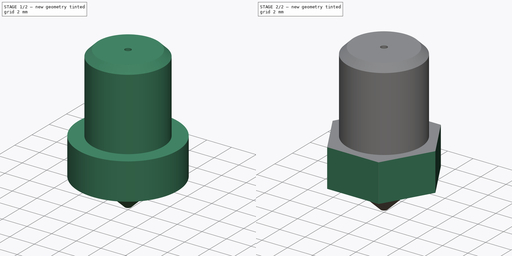
[diagram: build sequence overview — one tinted view per stage of 2, left to right]
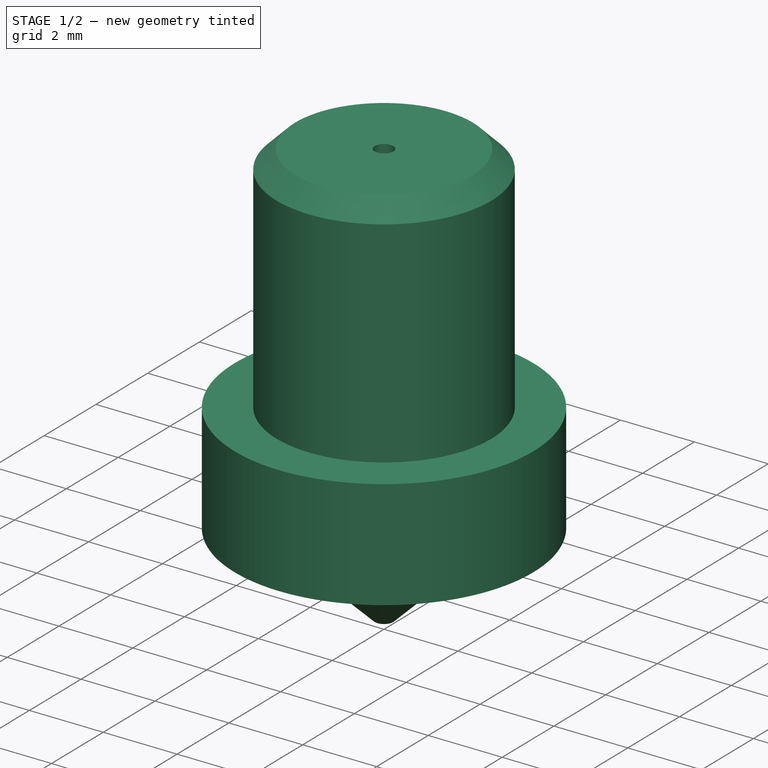
[diagram: stage 1 of 2 — iso view after this stage's code; geometry added in this stage tinted green]
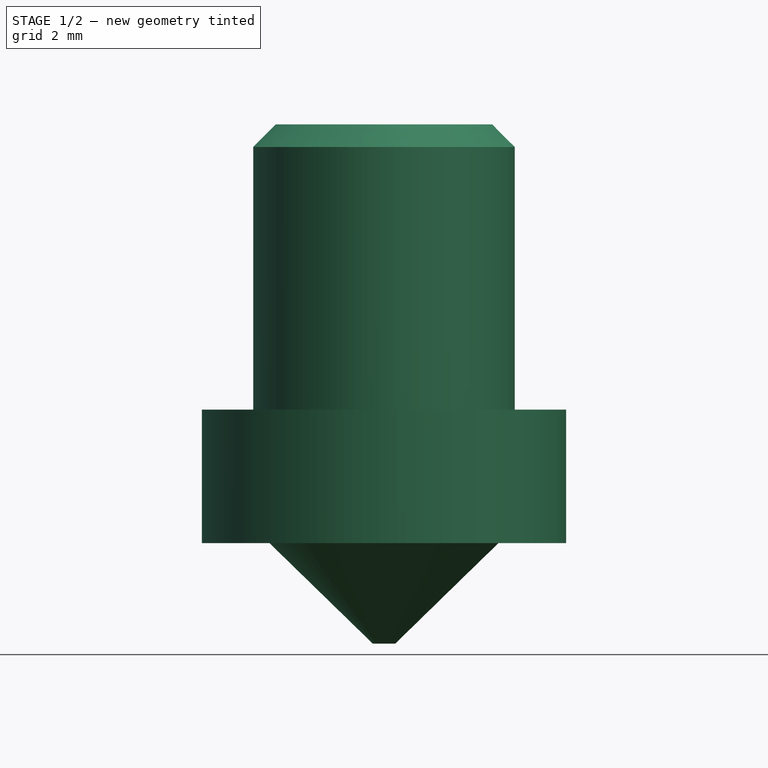
[diagram: stage 1 of 2 — front view after this stage's code; geometry added in this stage tinted green]
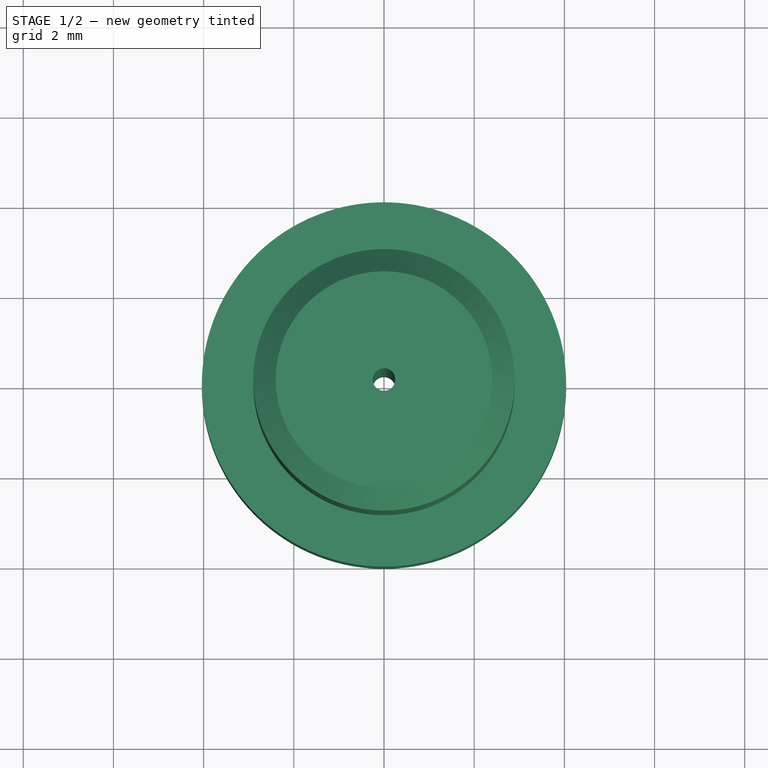
[diagram: stage 1 of 2 — top view after this stage's code; geometry added in this stage tinted green]
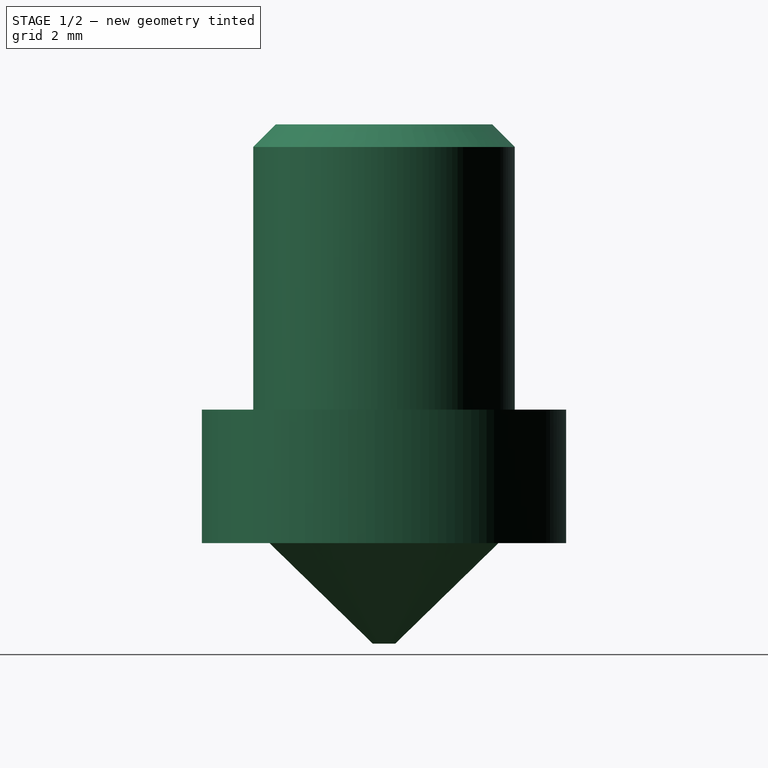
[diagram: stage 1 of 2 — right view after this stage's code; geometry added in this stage tinted green]
FCSTD DOCUMENT  (FreeCAD 0.15R4477 (Git))
Label: hotend-nozzle
License: CC-BY 3.0
LicenseURL: http://creativecommons.org/licenses/by/3.0/
objects: Sketcher::SketchObject×2, PartDesign::Revolution×1, PartDesign::Pocket×1, Part::Feature×1
note: 7 computed .brp shape members not serialized (recipe doc carries the construction recipe); baked Part::Feature solids carry a one-line shape summary decoded from their .brp

FEATURE [Sketcher::SketchObject] Sketch  label="main-body-sketch"
  Placement = pos=(0,0,0) rot=(1,0,0;1.5708rad)
  sketch-geometry (9):
    g0: LineSegment StartX=-0.25 StartY=13 StartZ=0 EndX=-2.4 EndY=13 EndZ=0
    g1: LineSegment StartX=-2.4 StartY=13 StartZ=0 EndX=-2.9 EndY=12.5 EndZ=0
    g2: LineSegment StartX=-2.9 StartY=12.5 StartZ=0 EndX=-2.9 EndY=6.675 EndZ=0
    g3: LineSegment StartX=-2.9 StartY=6.675 StartZ=0 EndX=-4.04 EndY=6.675 EndZ=0
    g4: LineSegment StartX=-4.04 StartY=6.675 StartZ=0 EndX=-4.04 EndY=3.715 EndZ=0
    g5: LineSegment StartX=-0.25 StartY=1.48609 StartZ=0 EndX=-0.25 EndY=13 EndZ=0
    g6: LineSegment [constr] StartX=-2.9 StartY=12.5 StartZ=0 EndX=0 EndY=12.5 EndZ=0
    g7: LineSegment StartX=-4.04 StartY=3.715 StartZ=0 EndX=-2.54 EndY=3.715 EndZ=0
    g8: LineSegment StartX=-2.54 StartY=3.715 StartZ=0 EndX=-0.25 EndY=1.48609 EndZ=0
  constraints (25):
    c: Horizontal(g0)
    c: Coincident(g0,g1)
    c: Coincident(g1,g2)
    c: Vertical(g2)
    c: Coincident(g2,g3)
    c: Horizontal(g3)
    c: Coincident(g3,g4)
    c: Vertical(g4)
    c: Coincident(g5,g0)
    c: Vertical(g5)
    c: DistanceX(g-1,g5) = -0.25
    c: DistanceX(g-1,g4) = -4.04
    c: DistanceY(g-1,g0) = 13
    c: Horizontal(g6)
    c: Coincident(g6,g1)
    c: DistanceX(g6) = 2.9
    c: Angle(g6,g1) = 0.785398
    c: DistanceX(g1,g0) = 0.5
    c: PointOnObject(g6,g-2)
    c: Distance(g4) = 2.96
    c: Coincident(g7,g4)
    c: Horizontal(g7)
    c: Coincident(g8,g7)
    c: Coincident(g8,g5)
    c: Distance(g7) = 1.5
FEATURE [PartDesign::Revolution] Revolution  label="main-body"
  Angle = 360
  Axis = (0,0,1)
  Base = (0,0,0)
  Placement = pos=(0,0,0) rot=(1,0,0;1.5708rad)
  ReferenceAxis = -> Sketch [V_Axis]
  Sketch = -> Sketch
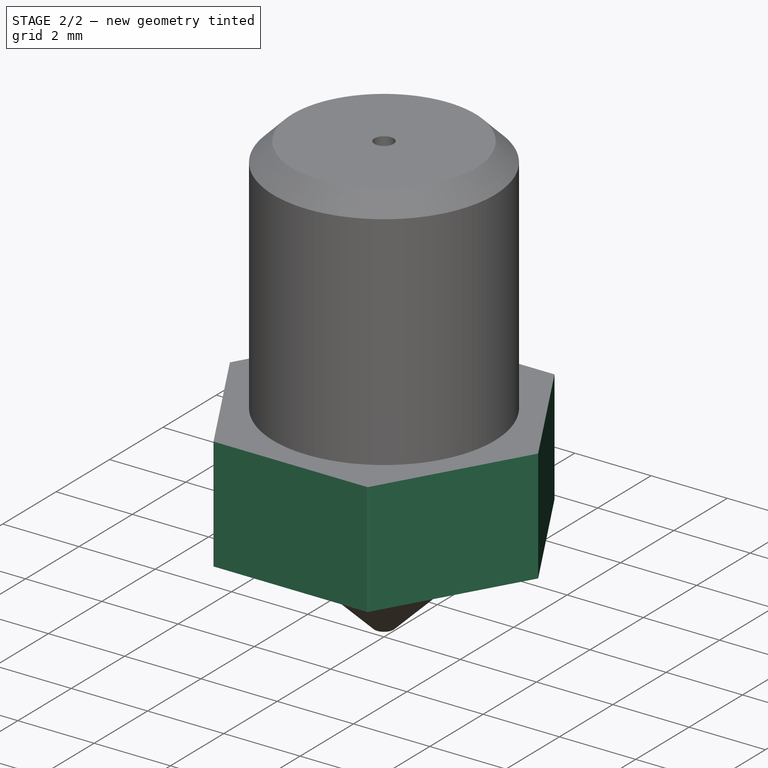
[diagram: stage 2 of 2 — iso view after this stage's code; geometry added in this stage tinted green]
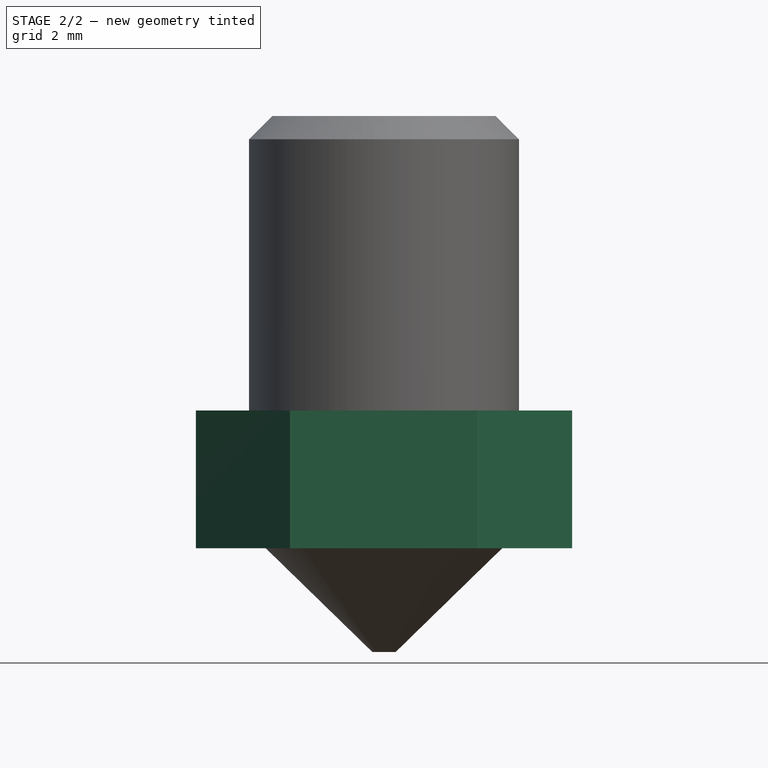
[diagram: stage 2 of 2 — front view after this stage's code; geometry added in this stage tinted green]
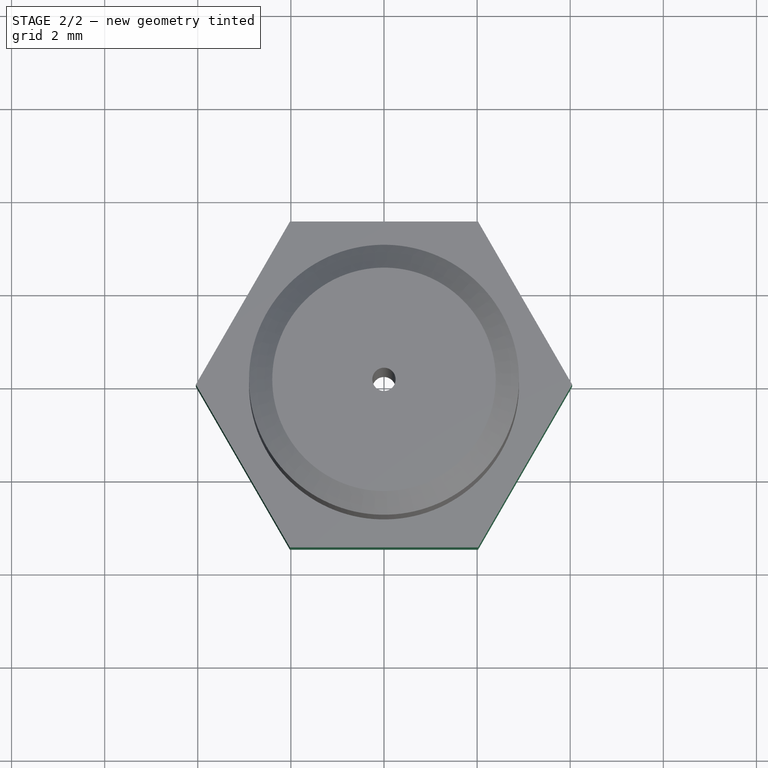
[diagram: stage 2 of 2 — top view after this stage's code; geometry added in this stage tinted green]
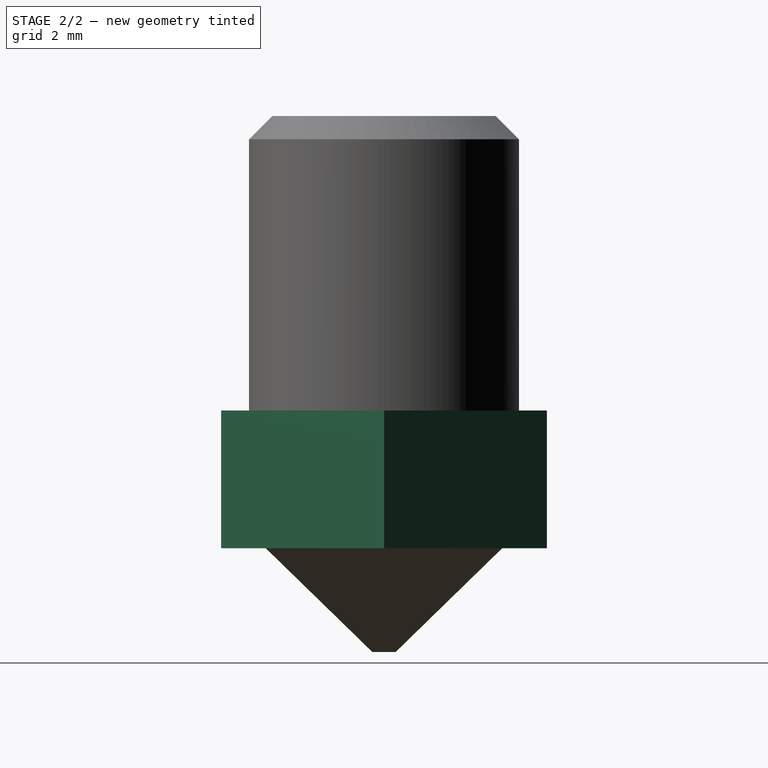
[diagram: stage 2 of 2 — right view after this stage's code; geometry added in this stage tinted green]
FEATURE [Sketcher::SketchObject] Sketch001  label="hexagonal-cutout-sketch"
  Placement = pos=(0,0,6.675) rot=(0,0,1;3.14159rad)
  Support = -> Revolution [Face4]
  sketch-geometry (11):
    g0: LineSegment StartX=-4.04145 StartY=0 StartZ=0 EndX=-2.02073 EndY=3.5 EndZ=0
    g1: LineSegment StartX=-2.02073 StartY=3.5 StartZ=0 EndX=2.02073 EndY=3.5 EndZ=0
    g2: LineSegment [constr] StartX=0 StartY=3.5 StartZ=0 EndX=0 EndY=0 EndZ=0
    g3: LineSegment [constr] StartX=-4.04145 StartY=0 StartZ=0 EndX=0 EndY=0 EndZ=0
    g4: LineSegment [constr] StartX=-2.02073 StartY=3.5 StartZ=0 EndX=0 EndY=0 EndZ=0
    g5: LineSegment StartX=-4.04145 StartY=0 StartZ=0 EndX=-2.02073 EndY=-3.5 EndZ=0
    g6: LineSegment StartX=-2.02073 StartY=-3.5 StartZ=0 EndX=2.02073 EndY=-3.5 EndZ=0
    g7: LineSegment StartX=2.02073 StartY=-3.5 StartZ=0 EndX=4.04145 EndY=0 EndZ=0
    g8: LineSegment StartX=4.04145 StartY=0 StartZ=0 EndX=2.02073 EndY=3.5 EndZ=0
    g9: Circle CenterX=0 CenterY=0 CenterZ=0 NormalX=0 NormalY=0 NormalZ=1 Radius=5.04145
    g10: LineSegment [constr] StartX=-5.04145 StartY=0 StartZ=0 EndX=-4.04145 EndY=0 EndZ=0
  constraints (27):
    c: Coincident(g0,g1)
    c: Vertical(g2)
    c: Horizontal(g3)
    c: Coincident(g3,g2)
    c: Symmetric(g0,g1,g2)
    c: PointOnObject(g2,g1)
    c: Coincident(g3,g0)
    c: Coincident(g4,g2)
    c: Coincident(g4,g0)
    c: Angle(g4,g3) = 1.0472
    c: Equal(g3,g4)
    c: Coincident(g5,g6)
    c: Horizontal(g6)
    c: Coincident(g6,g7)
    c: Coincident(g7,g8)
    c: Coincident(g8,g1)
    c: Coincident(g5,g0)
    c: Symmetric(g7,g0,g2)
    c: Symmetric(g5,g0,g3)
    c: Symmetric(g6,g1,g3)
    c: DistanceY(g6,g1) = 7
    c: Coincident(g2,g-1)
    c: Coincident(g9,g-1)
    c: Horizontal(g10)
    c: Coincident(g10,g0)
    c: PointOnObject(g10,g9)
    c: DistanceX(g10) = 1
FEATURE [PartDesign::Pocket] Pocket  label="hexagonal-cutout"
  Length = 5
  Placement = pos=(0,0,0) rot=(1,0,0;1.5708rad)
  Sketch = -> Sketch001
  Type = 1
FEATURE [Part::Feature] Pocket001  label="hotend-nozzle-final"
  shape: bbox 8.08 x 7 x 11.51 mm, 19 faces (baked)
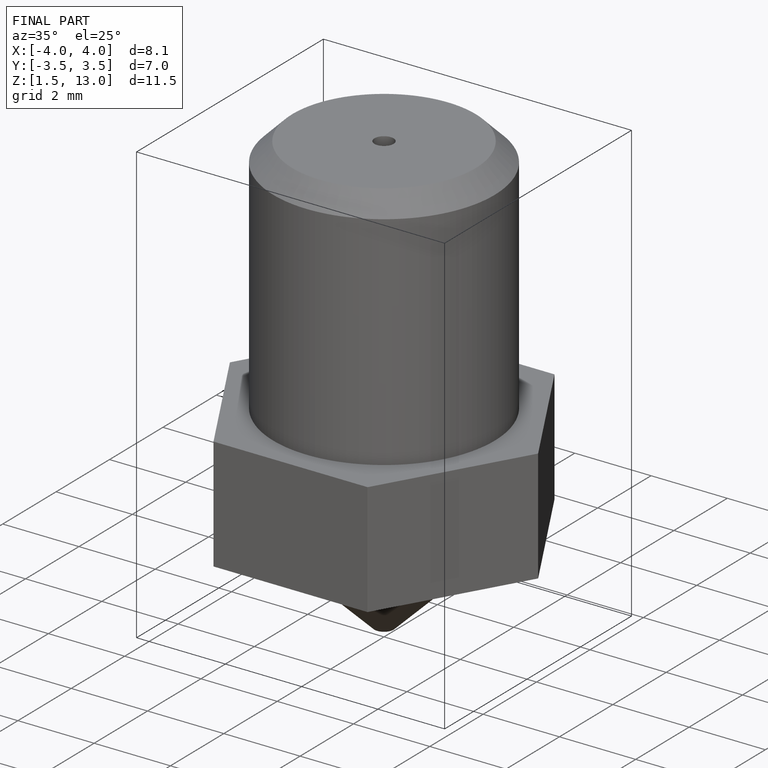
[diagram: finished part — iso view with bounding-box wireframe]
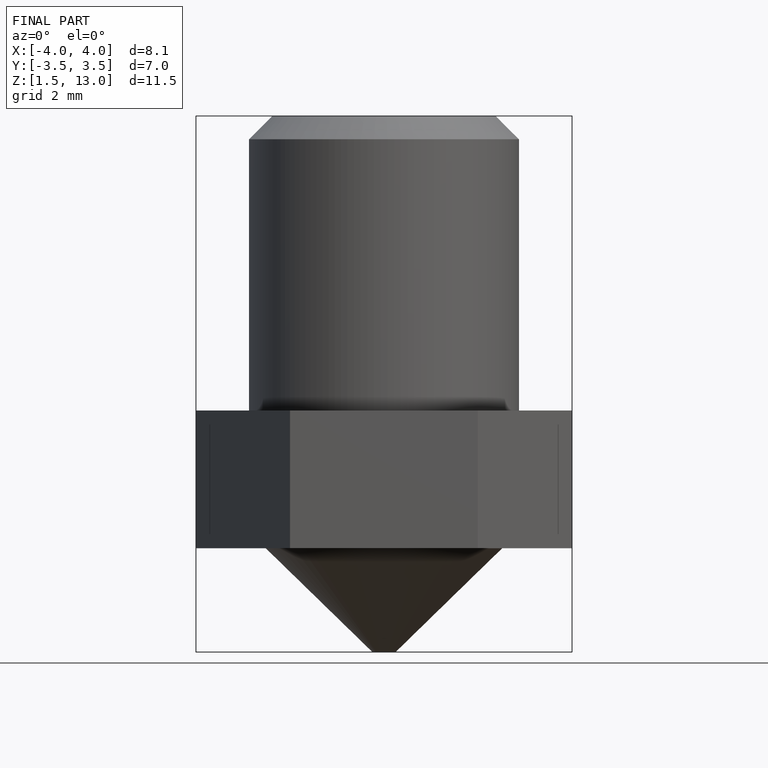
[diagram: finished part — front view with bounding-box wireframe]
